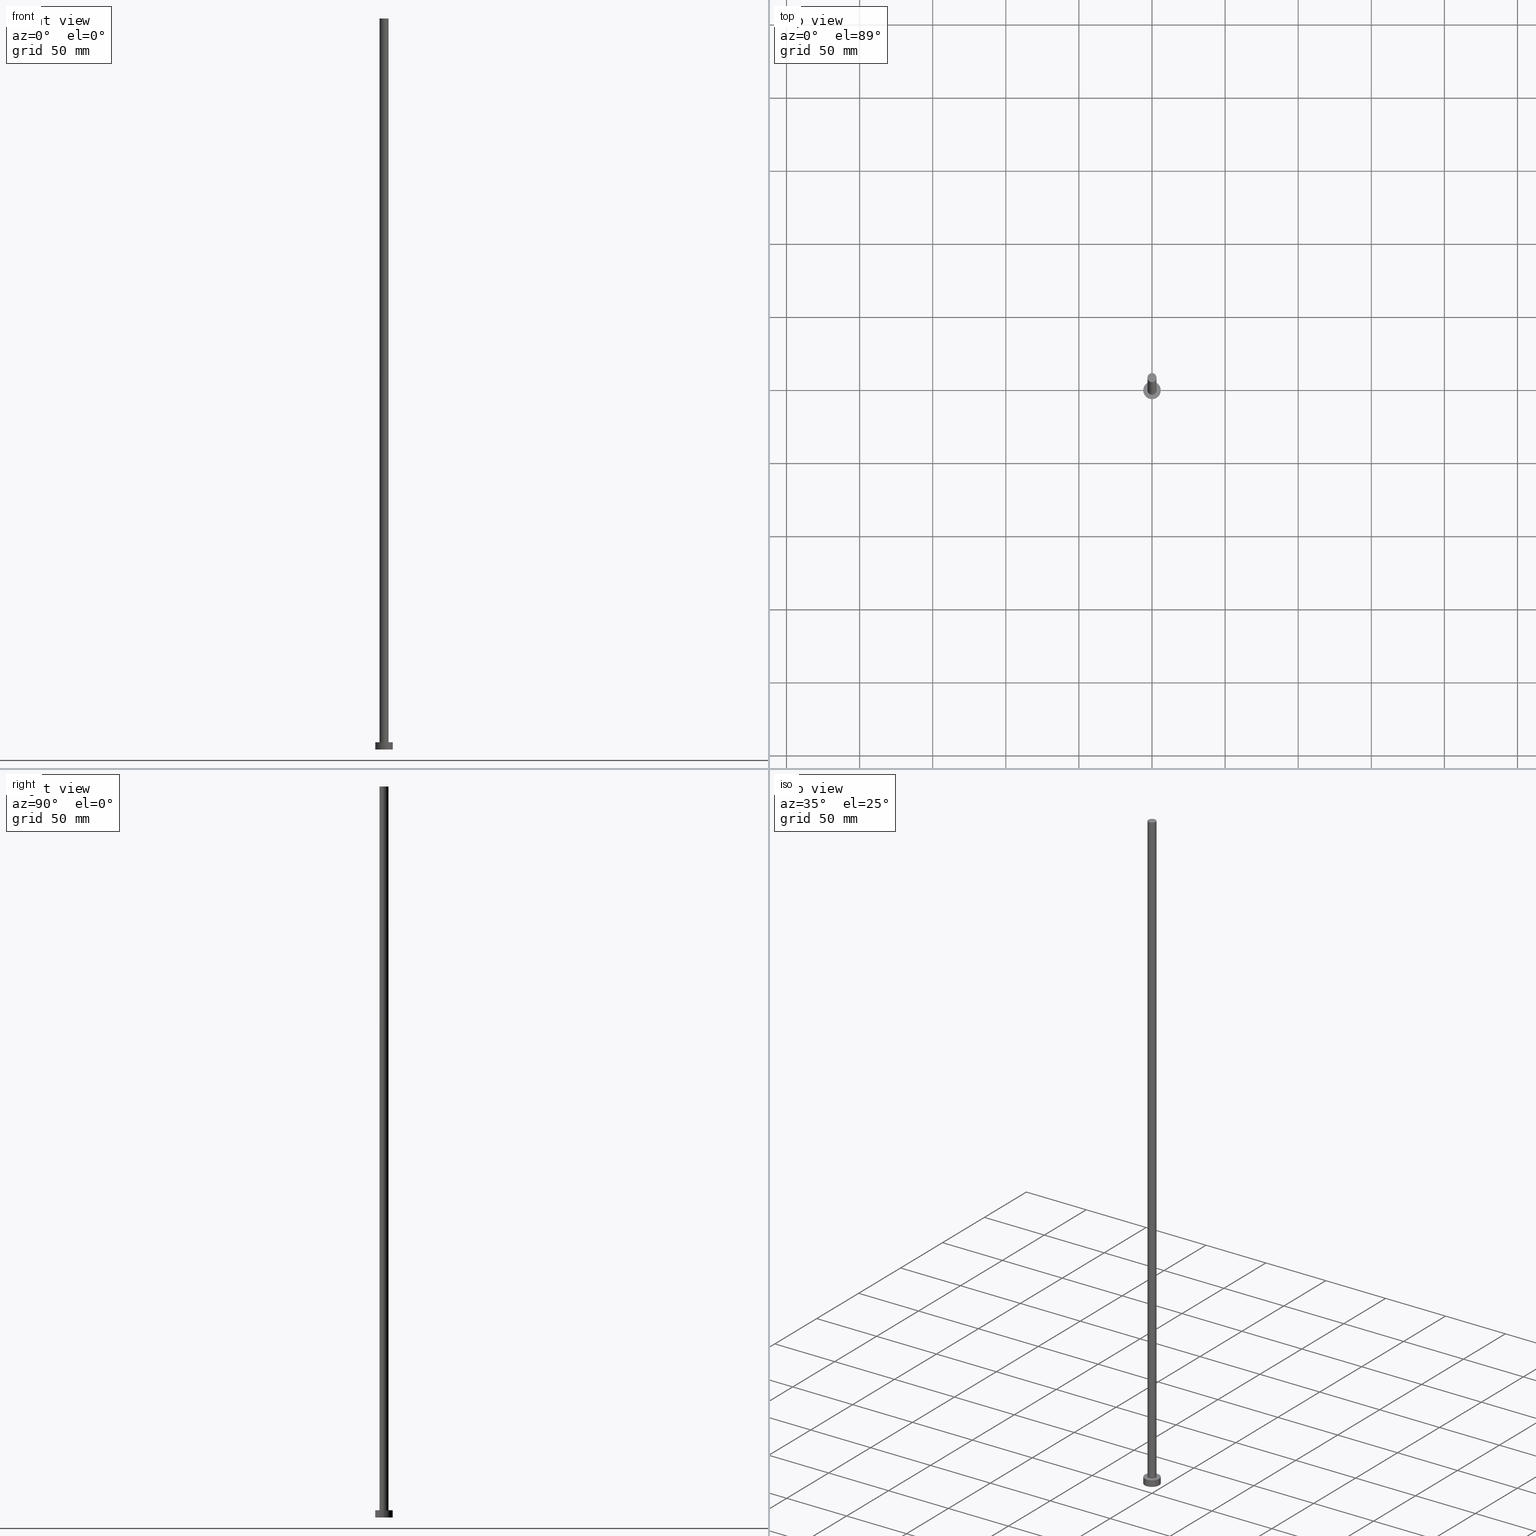
[diagram: canonical four-view strip — front | top / right | iso, engineering-drawing reading convention]
A machine part, canonical four-view strip (front | top / right | iso — engineering-drawing reading convention). The complete STEP part file that produces these views, byte-faithful:
ISO-10303-21;
HEADER;
FILE_DESCRIPTION (( 'STEP AP203' ),
    '1' );
FILE_NAME ('4ff3.STEP',
    '2023-02-12T12:10:00',
    ( '' ),
    ( '' ),
    'SwSTEP 2.0',
    'SolidWorks 2019',
    '' );
FILE_SCHEMA (( 'CONFIG_CONTROL_DESIGN' ));
ENDSEC;

DATA;
#1 = DATE_AND_TIME ( #106, #17 ) ;
#2 = SHAPE_DEFINITION_REPRESENTATION ( #97, #154 ) ;
#3 = CC_DESIGN_PERSON_AND_ORGANIZATION_ASSIGNMENT ( #215, #78, ( #100 ) ) ;
#4 = ORIENTED_EDGE ( 'NONE', *, *, #195, .F. ) ;
#5 = DIRECTION ( 'NONE',  ( 1.000000000000000000, 0.000000000000000000, -0.000000000000000000 ) ) ;
#6 = CARTESIAN_POINT ( 'NONE',  ( -6.000000000000000888, 0.000000000000000000, 5.000000000000000000 ) ) ;
#7 = DIRECTION ( 'NONE',  ( -0.000000000000000000, -0.000000000000000000, -1.000000000000000000 ) ) ;
#8 = CIRCLE ( 'NONE', #228, 6.000000000000000888 ) ;
#9 = CARTESIAN_POINT ( 'NONE',  ( -6.000000000000000888, 0.000000000000000000, 0.000000000000000000 ) ) ;
#10 = DIRECTION ( 'NONE',  ( 1.000000000000000000, 0.000000000000000000, 0.000000000000000000 ) ) ;
#11 = ADVANCED_FACE ( 'NONE', ( #222 ), #148, .T. ) ;
#12 = AXIS2_PLACEMENT_3D ( 'NONE', #200, #180, #10 ) ;
#13 = MECHANICAL_CONTEXT ( 'NONE', #206, 'mechanical' ) ;
#14 = CARTESIAN_POINT ( 'NONE',  ( 0.000000000000000000, 0.000000000000000000, 5.000000000000000000 ) ) ;
#15 = PERSON_AND_ORGANIZATION ( #81, #128 ) ;
#16 = CARTESIAN_POINT ( 'NONE',  ( -6.000000000000000888, 0.000000000000000000, 5.000000000000000000 ) ) ;
#17 = LOCAL_TIME ( 13, 10, 0.000000000000000000, #136 ) ;
#18 = DATE_AND_TIME ( #85, #197 ) ;
#19 = APPROVAL ( #211, 'NEUR�EN�' ) ;
#20 = PERSON_AND_ORGANIZATION ( #81, #128 ) ;
#21 =( NAMED_UNIT ( * ) PLANE_ANGLE_UNIT ( ) SI_UNIT ( $, .RADIAN. ) );
#22 = DIRECTION ( 'NONE',  ( 0.000000000000000000, 0.000000000000000000, 1.000000000000000000 ) ) ;
#23 = ORIENTED_EDGE ( 'NONE', *, *, #95, .T. ) ;
#24 = VECTOR ( 'NONE', #255, 1000.000000000000000 ) ;
#25 = DIRECTION ( 'NONE',  ( 1.000000000000000000, 0.000000000000000000, 0.000000000000000000 ) ) ;
#26 = FACE_OUTER_BOUND ( 'NONE', #82, .T. ) ;
#27 = CARTESIAN_POINT ( 'NONE',  ( 0.000000000000000000, 0.000000000000000000, 500.0000000000000000 ) ) ;
#28 = CARTESIAN_POINT ( 'NONE',  ( 0.000000000000000000, 0.000000000000000000, 5.000000000000000000 ) ) ;
#29 = APPLICATION_CONTEXT ( 'configuration controlled 3d designs of mechanical parts and assemblies' ) ;
#30 = AXIS2_PLACEMENT_3D ( 'NONE', #27, #174, #241 ) ;
#31 = CALENDAR_DATE ( 2023, 12, 2 ) ;
#32 = DIRECTION ( 'NONE',  ( 1.000000000000000000, 0.000000000000000000, -0.000000000000000000 ) ) ;
#33 = COORDINATED_UNIVERSAL_TIME_OFFSET ( 1, 0, .AHEAD. ) ;
#34 = VERTEX_POINT ( 'NONE', #6 ) ;
#35 = ADVANCED_FACE ( 'NONE', ( #43 ), #245, .T. ) ;
#36 = PERSON_AND_ORGANIZATION ( #81, #128 ) ;
#37 = APPROVAL ( #116, 'NEUR�EN�' ) ;
#38 = COORDINATED_UNIVERSAL_TIME_OFFSET ( 1, 0, .AHEAD. ) ;
#39 = MANIFOLD_SOLID_BREP ( 'P�idat vysunut�m3', #198 ) ;
#40 = CARTESIAN_POINT ( 'NONE',  ( 0.000000000000000000, 0.000000000000000000, 5.000000000000000000 ) ) ;
#41 = VECTOR ( 'NONE', #193, 1000.000000000000000 ) ;
#42 = ORIENTED_EDGE ( 'NONE', *, *, #125, .T. ) ;
#43 = FACE_OUTER_BOUND ( 'NONE', #237, .T. ) ;
#44 = CARTESIAN_POINT ( 'NONE',  ( 3.100000000000000089, 3.796405077356794918E-16, 5.000000000000000000 ) ) ;
#45 = ORIENTED_EDGE ( 'NONE', *, *, #157, .F. ) ;
#46 =( LENGTH_UNIT ( ) NAMED_UNIT ( * ) SI_UNIT ( .MILLI., .METRE. ) );
#47 = CALENDAR_DATE ( 2023, 12, 2 ) ;
#48 = DIRECTION ( 'NONE',  ( 1.000000000000000000, 0.000000000000000000, 0.000000000000000000 ) ) ;
#49 = PERSON_AND_ORGANIZATION_ROLE ( 'creator' ) ;
#50 = PERSON_AND_ORGANIZATION_ROLE ( 'design_owner' ) ;
#51 = DIRECTION ( 'NONE',  ( -0.000000000000000000, -0.000000000000000000, -1.000000000000000000 ) ) ;
#52 = CARTESIAN_POINT ( 'NONE',  ( 0.000000000000000000, 0.000000000000000000, 500.0000000000000000 ) ) ;
#53 = AXIS2_PLACEMENT_3D ( 'NONE', #28, #246, #131 ) ;
#54 = PRODUCT_DEFINITION ( 'NEZN�M�', '', #100, #201 ) ;
#55 = LOCAL_TIME ( 13, 10, 0.000000000000000000, #159 ) ;
#56 = DIRECTION ( 'NONE',  ( 1.000000000000000000, 0.000000000000000000, 0.000000000000000000 ) ) ;
#57 = CYLINDRICAL_SURFACE ( 'NONE', #236, 3.100000000000000089 ) ;
#58 = PLANE ( 'NONE',  #98 ) ;
#59 = CIRCLE ( 'NONE', #218, 3.100000000000000089 ) ;
#60 = APPROVAL_DATE_TIME ( #1, #19 ) ;
#61 = CYLINDRICAL_SURFACE ( 'NONE', #188, 6.000000000000000888 ) ;
#62 = ORIENTED_EDGE ( 'NONE', *, *, #189, .T. ) ;
#63 = VERTEX_POINT ( 'NONE', #9 ) ;
#64 = CARTESIAN_POINT ( 'NONE',  ( 0.000000000000000000, 0.000000000000000000, 0.000000000000000000 ) ) ;
#65 = EDGE_CURVE ( 'NONE', #250, #196, #151, .T. ) ;
#66 = CARTESIAN_POINT ( 'NONE',  ( 0.000000000000000000, 0.000000000000000000, 5.000000000000000000 ) ) ;
#67 = LINE ( 'NONE', #177, #132 ) ;
#68 = AXIS2_PLACEMENT_3D ( 'NONE', #40, #167, #5 ) ;
#69 = CC_DESIGN_DATE_AND_TIME_ASSIGNMENT ( #191, #158, ( #54 ) ) ;
#70 = DIRECTION ( 'NONE',  ( 0.000000000000000000, 0.000000000000000000, 1.000000000000000000 ) ) ;
#71 = ORIENTED_EDGE ( 'NONE', *, *, #181, .T. ) ;
#72 = ADVANCED_FACE ( 'NONE', ( #138 ), #61, .T. ) ;
#73 = CARTESIAN_POINT ( 'NONE',  ( 6.000000000000000888, 7.347880794884120722E-16, 5.000000000000000000 ) ) ;
#74 = CARTESIAN_POINT ( 'NONE',  ( 0.000000000000000000, 0.000000000000000000, 0.000000000000000000 ) ) ;
#75 = CC_DESIGN_APPROVAL ( #118, ( #93 ) ) ;
#76 = AXIS2_PLACEMENT_3D ( 'NONE', #192, #252, #48 ) ;
#77 = CARTESIAN_POINT ( 'NONE',  ( 0.000000000000000000, 0.000000000000000000, 500.0000000000000000 ) ) ;
#78 = PERSON_AND_ORGANIZATION_ROLE ( 'design_supplier' ) ;
#79 = DIRECTION ( 'NONE',  ( -0.000000000000000000, -0.000000000000000000, -1.000000000000000000 ) ) ;
#80 = APPROVAL_DATE_TIME ( #18, #118 ) ;
#81 = PERSON ( 'NEUR�EN�', 'NEUR�EN�', 'NEUR�EN�', ('NEUR�EN�'), ('NEUR�EN�'), ('NEUR�EN�') ) ;
#82 = EDGE_LOOP ( 'NONE', ( #102, #4, #42, #137 ) ) ;
#83 = AXIS2_PLACEMENT_3D ( 'NONE', #74, #172, #219 ) ;
#84 = DIRECTION ( 'NONE',  ( 0.000000000000000000, 0.000000000000000000, 1.000000000000000000 ) ) ;
#85 = CALENDAR_DATE ( 2023, 12, 2 ) ;
#86 = CARTESIAN_POINT ( 'NONE',  ( 0.000000000000000000, 0.000000000000000000, 5.000000000000000000 ) ) ;
#87 = ORIENTED_EDGE ( 'NONE', *, *, #135, .F. ) ;
#88 = APPROVAL_ROLE ( '' ) ;
#89 = DIRECTION ( 'NONE',  ( 1.000000000000000000, 0.000000000000000000, 0.000000000000000000 ) ) ;
#90 = EDGE_CURVE ( 'NONE', #250, #34, #160, .T. ) ;
#91 = ORIENTED_EDGE ( 'NONE', *, *, #114, .T. ) ;
#92 = PRODUCT_RELATED_PRODUCT_CATEGORY ( 'detail', '', ( #175 ) ) ;
#93 = SECURITY_CLASSIFICATION ( '', '', #209 ) ;
#94 = ORIENTED_EDGE ( 'NONE', *, *, #216, .F. ) ;
#95 = EDGE_CURVE ( 'NONE', #146, #143, #122, .T. ) ;
#96 = VECTOR ( 'NONE', #79, 1000.000000000000000 ) ;
#97 = PRODUCT_DEFINITION_SHAPE ( 'NONE', 'NONE',  #54 ) ;
#98 = AXIS2_PLACEMENT_3D ( 'NONE', #229, #84, #32 ) ;
#99 = CC_DESIGN_PERSON_AND_ORGANIZATION_ASSIGNMENT ( #101, #49, ( #100 ) ) ;
#100 = PRODUCT_DEFINITION_FORMATION_WITH_SPECIFIED_SOURCE ( 'LIBOVOLN�', '', #175, .NOT_KNOWN. ) ;
#101 = PERSON_AND_ORGANIZATION ( #81, #128 ) ;
#102 = ORIENTED_EDGE ( 'NONE', *, *, #65, .F. ) ;
#103 = PERSON_AND_ORGANIZATION_ROLE ( 'creator' ) ;
#104 = DIRECTION ( 'NONE',  ( 1.000000000000000000, 0.000000000000000000, 0.000000000000000000 ) ) ;
#105 = LINE ( 'NONE', #187, #24 ) ;
#106 = CALENDAR_DATE ( 2023, 12, 2 ) ;
#107 = ORIENTED_EDGE ( 'NONE', *, *, #95, .F. ) ;
#108 = ORIENTED_EDGE ( 'NONE', *, *, #90, .T. ) ;
#109 = ORIENTED_EDGE ( 'NONE', *, *, #157, .T. ) ;
#110 = FACE_OUTER_BOUND ( 'NONE', #168, .T. ) ;
#111 = CIRCLE ( 'NONE', #12, 6.000000000000000888 ) ;
#112 = CARTESIAN_POINT ( 'NONE',  ( -3.100000000000000089, 0.000000000000000000, 500.0000000000000000 ) ) ;
#113 = CIRCLE ( 'NONE', #242, 3.100000000000000089 ) ;
#114 = EDGE_CURVE ( 'NONE', #194, #143, #105, .T. ) ;
#115 = ORIENTED_EDGE ( 'NONE', *, *, #135, .T. ) ;
#116 = APPROVAL_STATUS ( 'not_yet_approved' ) ;
#117 = ORIENTED_EDGE ( 'NONE', *, *, #181, .F. ) ;
#118 = APPROVAL ( #251, 'NEUR�EN�' ) ;
#119 = ORIENTED_EDGE ( 'NONE', *, *, #125, .F. ) ;
#120 = APPROVAL_ROLE ( '' ) ;
#121 = ORIENTED_EDGE ( 'NONE', *, *, #210, .T. ) ;
#122 = CIRCLE ( 'NONE', #213, 3.100000000000000089 ) ;
#123 = DATE_AND_TIME ( #186, #150 ) ;
#124 = DIRECTION ( 'NONE',  ( -1.000000000000000000, 0.000000000000000000, 0.000000000000000000 ) ) ;
#125 = EDGE_CURVE ( 'NONE', #34, #63, #142, .T. ) ;
#126 = DIRECTION ( 'NONE',  ( 0.000000000000000000, 0.000000000000000000, 1.000000000000000000 ) ) ;
#127 = DIRECTION ( 'NONE',  ( 0.000000000000000000, 0.000000000000000000, 1.000000000000000000 ) ) ;
#128 = ORGANIZATION ( 'NEUR�EN�', 'NEUR�EN�', '' ) ;
#129 = ADVANCED_FACE ( 'NONE', ( #26 ), #223, .T. ) ;
#130 = CARTESIAN_POINT ( 'NONE',  ( -3.100000000000000089, 0.000000000000000000, 5.000000000000000000 ) ) ;
#131 = DIRECTION ( 'NONE',  ( -1.000000000000000000, 0.000000000000000000, 0.000000000000000000 ) ) ;
#132 = VECTOR ( 'NONE', #152, 1000.000000000000000 ) ;
#133 = CARTESIAN_POINT ( 'NONE',  ( 6.000000000000000888, 7.347880794884120722E-16, 0.000000000000000000 ) ) ;
#134 = CARTESIAN_POINT ( 'NONE',  ( 3.100000000000000089, 3.796405077356794918E-16, 500.0000000000000000 ) ) ;
#135 = EDGE_CURVE ( 'NONE', #227, #194, #249, .T. ) ;
#136 = COORDINATED_UNIVERSAL_TIME_OFFSET ( 1, 0, .AHEAD. ) ;
#137 = ORIENTED_EDGE ( 'NONE', *, *, #216, .T. ) ;
#138 = FACE_OUTER_BOUND ( 'NONE', #208, .T. ) ;
#139 = CC_DESIGN_PERSON_AND_ORGANIZATION_ASSIGNMENT ( #36, #50, ( #175 ) ) ;
#140 = CARTESIAN_POINT ( 'NONE',  ( 6.000000000000000888, 7.347880794884120722E-16, 5.000000000000000000 ) ) ;
#141 = DATE_AND_TIME ( #47, #55 ) ;
#142 = LINE ( 'NONE', #16, #96 ) ;
#143 = VERTEX_POINT ( 'NONE', #130 ) ;
#144 = CC_DESIGN_APPROVAL ( #19, ( #54 ) ) ;
#145 = DIRECTION ( 'NONE',  ( -1.000000000000000000, 0.000000000000000000, 0.000000000000000000 ) ) ;
#146 = VERTEX_POINT ( 'NONE', #44 ) ;
#147 = CARTESIAN_POINT ( 'NONE',  ( 0.000000000000000000, 0.000000000000000000, 500.0000000000000000 ) ) ;
#148 = CYLINDRICAL_SURFACE ( 'NONE', #30, 3.100000000000000089 ) ;
#149 = EDGE_LOOP ( 'NONE', ( #45, #162, #91, #71 ) ) ;
#150 = LOCAL_TIME ( 13, 10, 0.000000000000000000, #185 ) ;
#151 = LINE ( 'NONE', #73, #41 ) ;
#152 = DIRECTION ( 'NONE',  ( -0.000000000000000000, -0.000000000000000000, -1.000000000000000000 ) ) ;
#153 = LOCAL_TIME ( 13, 10, 0.000000000000000000, #38 ) ;
#154 = ADVANCED_BREP_SHAPE_REPRESENTATION ( '4ff3', ( #39, #254 ), #182 ) ;
#155 = EDGE_LOOP ( 'NONE', ( #239, #108 ) ) ;
#156 = FACE_OUTER_BOUND ( 'NONE', #214, .T. ) ;
#157 = EDGE_CURVE ( 'NONE', #227, #146, #67, .T. ) ;
#158 = DATE_TIME_ROLE ( 'creation_date' ) ;
#159 = COORDINATED_UNIVERSAL_TIME_OFFSET ( 1, 0, .AHEAD. ) ;
#160 = CIRCLE ( 'NONE', #76, 6.000000000000000888 ) ;
#161 = PERSON_AND_ORGANIZATION ( #81, #128 ) ;
#162 = ORIENTED_EDGE ( 'NONE', *, *, #189, .F. ) ;
#163 = PERSON_AND_ORGANIZATION ( #81, #128 ) ;
#164 = FACE_OUTER_BOUND ( 'NONE', #155, .T. ) ;
#165 = PERSON_AND_ORGANIZATION_ROLE ( 'classification_officer' ) ;
#166 = APPROVAL_PERSON_ORGANIZATION ( #161, #37, #253 ) ;
#167 = DIRECTION ( 'NONE',  ( 0.000000000000000000, 0.000000000000000000, 1.000000000000000000 ) ) ;
#168 = EDGE_LOOP ( 'NONE', ( #87, #109, #23, #217 ) ) ;
#169 = FACE_BOUND ( 'NONE', #243, .T. ) ;
#170 = ADVANCED_FACE ( 'NONE', ( #110 ), #57, .T. ) ;
#171 = CC_DESIGN_DATE_AND_TIME_ASSIGNMENT ( #123, #183, ( #93 ) ) ;
#172 = DIRECTION ( 'NONE',  ( 0.000000000000000000, 0.000000000000000000, 1.000000000000000000 ) ) ;
#173 = DIRECTION ( 'NONE',  ( 1.000000000000000000, 0.000000000000000000, 0.000000000000000000 ) ) ;
#174 = DIRECTION ( 'NONE',  ( -0.000000000000000000, -0.000000000000000000, -1.000000000000000000 ) ) ;
#175 = PRODUCT ( '4ff3', '4ff3', '', ( #13 ) ) ;
#176 = DIRECTION ( 'NONE',  ( 1.000000000000000000, 0.000000000000000000, -0.000000000000000000 ) ) ;
#177 = CARTESIAN_POINT ( 'NONE',  ( 3.100000000000000089, 3.796405077356794918E-16, 500.0000000000000000 ) ) ;
#178 = ORIENTED_EDGE ( 'NONE', *, *, #65, .T. ) ;
#179 = AXIS2_PLACEMENT_3D ( 'NONE', #244, #70, #173 ) ;
#180 = DIRECTION ( 'NONE',  ( 0.000000000000000000, 0.000000000000000000, 1.000000000000000000 ) ) ;
#181 = EDGE_CURVE ( 'NONE', #143, #146, #59, .T. ) ;
#182 =( GEOMETRIC_REPRESENTATION_CONTEXT ( 3 ) GLOBAL_UNCERTAINTY_ASSIGNED_CONTEXT ( ( #204 ) ) GLOBAL_UNIT_ASSIGNED_CONTEXT ( ( #46, #21, #231 ) ) REPRESENTATION_CONTEXT ( 'NONE', 'WORKASPACE' ) );
#183 = DATE_TIME_ROLE ( 'classification_date' ) ;
#184 = ADVANCED_FACE ( 'NONE', ( #169, #164 ), #238, .T. ) ;
#185 = COORDINATED_UNIVERSAL_TIME_OFFSET ( 1, 0, .AHEAD. ) ;
#186 = CALENDAR_DATE ( 2023, 12, 2 ) ;
#187 = CARTESIAN_POINT ( 'NONE',  ( -3.100000000000000089, 0.000000000000000000, 500.0000000000000000 ) ) ;
#188 = AXIS2_PLACEMENT_3D ( 'NONE', #86, #51, #124 ) ;
#189 = EDGE_CURVE ( 'NONE', #194, #227, #113, .T. ) ;
#190 = APPLICATION_PROTOCOL_DEFINITION ( 'international standard', 'config_control_design', 1994, #29 ) ;
#191 = DATE_AND_TIME ( #31, #153 ) ;
#192 = CARTESIAN_POINT ( 'NONE',  ( 0.000000000000000000, 0.000000000000000000, 5.000000000000000000 ) ) ;
#193 = DIRECTION ( 'NONE',  ( -0.000000000000000000, -0.000000000000000000, -1.000000000000000000 ) ) ;
#194 = VERTEX_POINT ( 'NONE', #112 ) ;
#195 = EDGE_CURVE ( 'NONE', #34, #250, #8, .T. ) ;
#196 = VERTEX_POINT ( 'NONE', #133 ) ;
#197 = LOCAL_TIME ( 13, 10, 0.000000000000000000, #33 ) ;
#198 = CLOSED_SHELL ( 'NONE', ( #170, #72, #129, #184, #247, #11, #35 ) ) ;
#199 = ORIENTED_EDGE ( 'NONE', *, *, #90, .F. ) ;
#200 = CARTESIAN_POINT ( 'NONE',  ( 0.000000000000000000, 0.000000000000000000, 0.000000000000000000 ) ) ;
#201 = DESIGN_CONTEXT ( 'detailed design', #29, 'design' ) ;
#202 = CIRCLE ( 'NONE', #83, 6.000000000000000888 ) ;
#203 = AXIS2_PLACEMENT_3D ( 'NONE', #52, #127, #176 ) ;
#204 = UNCERTAINTY_MEASURE_WITH_UNIT (LENGTH_MEASURE( 1.000000000000000082E-05 ), #46, 'distance_accuracy_value', 'NONE');
#205 = CC_DESIGN_APPROVAL ( #37, ( #100 ) ) ;
#206 = APPLICATION_CONTEXT ( 'configuration controlled 3d designs of mechanical parts and assemblies' ) ;
#207 = APPLICATION_PROTOCOL_DEFINITION ( 'international standard', 'config_control_design', 1994, #206 ) ;
#208 = EDGE_LOOP ( 'NONE', ( #199, #178, #121, #119 ) ) ;
#209 = SECURITY_CLASSIFICATION_LEVEL ( 'unclassified' ) ;
#210 = EDGE_CURVE ( 'NONE', #196, #63, #111, .T. ) ;
#211 = APPROVAL_STATUS ( 'not_yet_approved' ) ;
#212 = DIRECTION ( 'NONE',  ( 0.000000000000000000, 0.000000000000000000, 1.000000000000000000 ) ) ;
#213 = AXIS2_PLACEMENT_3D ( 'NONE', #14, #212, #104 ) ;
#214 = EDGE_LOOP ( 'NONE', ( #94, #220 ) ) ;
#215 = PERSON_AND_ORGANIZATION ( #81, #128 ) ;
#216 = EDGE_CURVE ( 'NONE', #63, #196, #202, .T. ) ;
#217 = ORIENTED_EDGE ( 'NONE', *, *, #114, .F. ) ;
#218 = AXIS2_PLACEMENT_3D ( 'NONE', #66, #234, #89 ) ;
#219 = DIRECTION ( 'NONE',  ( 1.000000000000000000, 0.000000000000000000, 0.000000000000000000 ) ) ;
#220 = ORIENTED_EDGE ( 'NONE', *, *, #210, .F. ) ;
#221 = CC_DESIGN_PERSON_AND_ORGANIZATION_ASSIGNMENT ( #163, #103, ( #54 ) ) ;
#222 = FACE_OUTER_BOUND ( 'NONE', #149, .T. ) ;
#223 = CYLINDRICAL_SURFACE ( 'NONE', #53, 6.000000000000000888 ) ;
#224 = APPROVAL_PERSON_ORGANIZATION ( #232, #19, #120 ) ;
#225 = CARTESIAN_POINT ( 'NONE',  ( 0.000000000000000000, 0.000000000000000000, 5.000000000000000000 ) ) ;
#226 = CC_DESIGN_SECURITY_CLASSIFICATION ( #93, ( #100 ) ) ;
#227 = VERTEX_POINT ( 'NONE', #134 ) ;
#228 = AXIS2_PLACEMENT_3D ( 'NONE', #225, #248, #56 ) ;
#229 = CARTESIAN_POINT ( 'NONE',  ( 0.000000000000000000, 0.000000000000000000, 0.000000000000000000 ) ) ;
#230 = APPROVAL_DATE_TIME ( #141, #37 ) ;
#231 =( NAMED_UNIT ( * ) SI_UNIT ( $, .STERADIAN. ) SOLID_ANGLE_UNIT ( ) );
#232 = PERSON_AND_ORGANIZATION ( #81, #128 ) ;
#233 = APPROVAL_PERSON_ORGANIZATION ( #15, #118, #88 ) ;
#234 = DIRECTION ( 'NONE',  ( 0.000000000000000000, 0.000000000000000000, 1.000000000000000000 ) ) ;
#235 = DIRECTION ( 'NONE',  ( 1.000000000000000000, 0.000000000000000000, 0.000000000000000000 ) ) ;
#236 = AXIS2_PLACEMENT_3D ( 'NONE', #77, #7, #145 ) ;
#237 = EDGE_LOOP ( 'NONE', ( #62, #115 ) ) ;
#238 = PLANE ( 'NONE',  #68 ) ;
#239 = ORIENTED_EDGE ( 'NONE', *, *, #195, .T. ) ;
#240 = CC_DESIGN_PERSON_AND_ORGANIZATION_ASSIGNMENT ( #20, #165, ( #93 ) ) ;
#241 = DIRECTION ( 'NONE',  ( -1.000000000000000000, 0.000000000000000000, 0.000000000000000000 ) ) ;
#242 = AXIS2_PLACEMENT_3D ( 'NONE', #147, #126, #25 ) ;
#243 = EDGE_LOOP ( 'NONE', ( #117, #107 ) ) ;
#244 = CARTESIAN_POINT ( 'NONE',  ( 0.000000000000000000, 0.000000000000000000, 500.0000000000000000 ) ) ;
#245 = PLANE ( 'NONE',  #203 ) ;
#246 = DIRECTION ( 'NONE',  ( -0.000000000000000000, -0.000000000000000000, -1.000000000000000000 ) ) ;
#247 = ADVANCED_FACE ( 'NONE', ( #156 ), #58, .F. ) ;
#248 = DIRECTION ( 'NONE',  ( 0.000000000000000000, 0.000000000000000000, 1.000000000000000000 ) ) ;
#249 = CIRCLE ( 'NONE', #179, 3.100000000000000089 ) ;
#250 = VERTEX_POINT ( 'NONE', #140 ) ;
#251 = APPROVAL_STATUS ( 'not_yet_approved' ) ;
#252 = DIRECTION ( 'NONE',  ( 0.000000000000000000, 0.000000000000000000, 1.000000000000000000 ) ) ;
#253 = APPROVAL_ROLE ( '' ) ;
#254 = AXIS2_PLACEMENT_3D ( 'NONE', #64, #22, #235 ) ;
#255 = DIRECTION ( 'NONE',  ( -0.000000000000000000, -0.000000000000000000, -1.000000000000000000 ) ) ;
ENDSEC;
END-ISO-10303-21;
